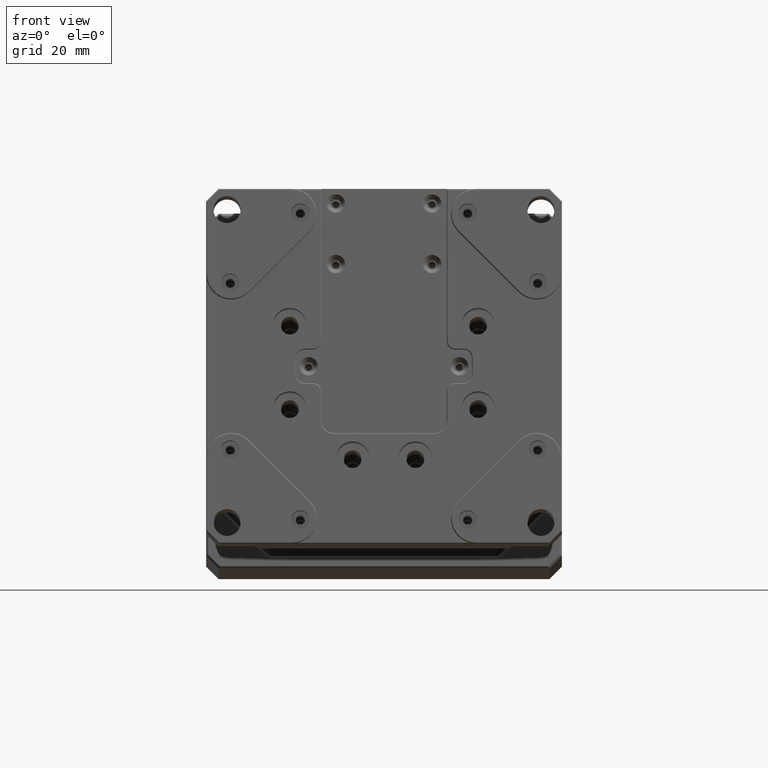
[diagram: clean part render]
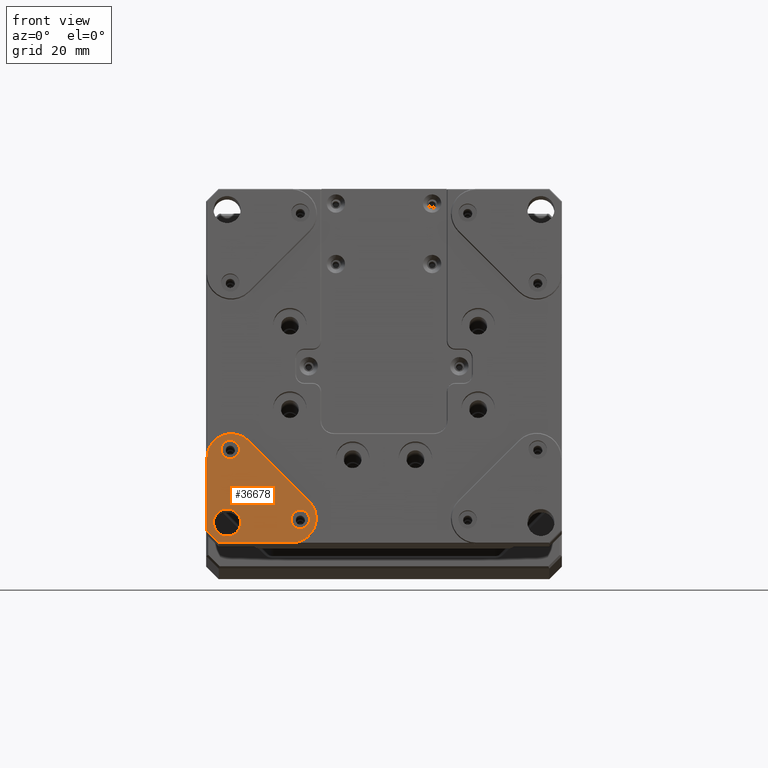
[diagram: same view with one face highlighted and labeled with its STEP entity id]
A machine part, front view. The second image highlights one B-rep face of the part: STEP entity #36678.
In plain terms, the highlighted planar face has unit normal (0, -0.9972, 0.0746).
Its self-contained STEP definition (entity closure, byte-faithful):
#595 = ORIENTED_EDGE ( 'NONE', *, *, #14929, .T. ) ;
#2346 = EDGE_LOOP ( 'NONE', ( #70621, #595, #26889, #13285, #59125, #8609 ) ) ;
#2611 = CARTESIAN_POINT ( 'NONE',  ( 61.25606156534639979, -43.26054637340540410, -56.07670192621849736 ) ) ;
#2772 = CARTESIAN_POINT ( 'NONE',  ( 65.36464020910901240, -41.70466977353864735, -35.27623195450810556 ) ) ;
#2848 = CIRCLE ( 'NONE', #41803, 3.250000000000002665 ) ;
#4487 = CARTESIAN_POINT ( 'NONE',  ( 59.81464020910899393, -43.15920769846449900, -54.72190806579190081 ) ) ;
#4854 = CIRCLE ( 'NONE', #55304, 2.199999999999993516 ) ;
#5282 = CARTESIAN_POINT ( 'NONE',  ( 82.11464020910901240, -42.95408055520569945, -51.97956912702110088 ) ) ;
#5554 = LINE ( 'NONE', #4487, #17437 ) ;
#7916 = CARTESIAN_POINT ( 'NONE',  ( 63.16464020910900246, -41.70466977353864735, -35.27623195450810556 ) ) ;
#7939 = CIRCLE ( 'NONE', #62962, 2.199999999999993516 ) ;
#8609 = ORIENTED_EDGE ( 'NONE', *, *, #46206, .T. ) ;
#8725 = CIRCLE ( 'NONE', #63765, 2.199999999999993516 ) ;
#9234 = EDGE_CURVE ( 'NONE', #61385, #19101, #4854, .T. ) ;
#10197 = ORIENTED_EDGE ( 'NONE', *, *, #63661, .F. ) ;
#10582 = DIRECTION ( 'NONE',  ( 3.473033245333054866E-16, -0.07459168845773747614, -0.9972141595530138458 ) ) ;
#10632 = VERTEX_POINT ( 'NONE', #33092 ) ;
#11722 = DIRECTION ( 'NONE',  ( 1.000000000000000000, 9.454242944073600637E-16, 2.775557561562890365E-16 ) ) ;
#12087 = LINE ( 'NONE', #60874, #14403 ) ;
#13285 = ORIENTED_EDGE ( 'NONE', *, *, #40613, .T. ) ;
#14079 = DIRECTION ( 'NONE',  ( 1.000000000000000000, 0.000000000000000000, 0.000000000000000000 ) ) ;
#14102 = CARTESIAN_POINT ( 'NONE',  ( 82.11464020910901240, -42.95408055520569945, -51.97956912702110088 ) ) ;
#14403 = VECTOR ( 'NONE', #11722, 1000.000000000000000 ) ;
#14761 = EDGE_CURVE ( 'NONE', #62729, #10632, #41583, .T. ) ;
#14892 = EDGE_LOOP ( 'NONE', ( #10197, #51778 ) ) ;
#14929 = EDGE_CURVE ( 'NONE', #28533, #55450, #61737, .T. ) ;
#15128 = DIRECTION ( 'NONE',  ( 0.000000000000000000, 0.9972141595530139568, -0.07459168845773739287 ) ) ;
#15208 = VERTEX_POINT ( 'NONE', #58830 ) ;
#15481 = FACE_OUTER_BOUND ( 'NONE', #2346, .T. ) ;
#15833 = CARTESIAN_POINT ( 'NONE',  ( 102.1146402091089982, -40.21283600438385264, -15.33194876344784952 ) ) ;
#17301 = AXIS2_PLACEMENT_3D ( 'NONE', #27347, #60374, #61449 ) ;
#17372 = DIRECTION ( 'NONE',  ( 1.000000000000000000, 0.000000000000000000, 0.000000000000000000 ) ) ;
#17437 = VECTOR ( 'NONE', #10582, 1000.000000000000114 ) ;
#19101 = VERTEX_POINT ( 'NONE', #47033 ) ;
#19268 = DIRECTION ( 'NONE',  ( 1.000000000000000000, 0.000000000000000000, 0.000000000000000000 ) ) ;
#19768 = VERTEX_POINT ( 'NONE', #40053 ) ;
#22066 = CARTESIAN_POINT ( 'NONE',  ( 65.36464020910901240, -41.70466977353864735, -35.27623195450810556 ) ) ;
#22966 = DIRECTION ( 'NONE',  ( 1.193028147002146057E-15, -0.9972141595530139568, 0.07459168845773739287 ) ) ;
#23735 = CARTESIAN_POINT ( 'NONE',  ( 59.81464020910899393, -41.85275526330679696, -37.25598265159570133 ) ) ;
#26889 = ORIENTED_EDGE ( 'NONE', *, *, #60811, .T. ) ;
#27347 = CARTESIAN_POINT ( 'NONE',  ( 65.61464020910901240, -41.85275526330679696, -37.25598265159570133 ) ) ;
#27489 = DIRECTION ( 'NONE',  ( 0.000000000000000000, -0.9972141595530139568, 0.07459168845773739287 ) ) ;
#27854 = DIRECTION ( 'NONE',  ( 1.000000000000000000, 0.000000000000000000, 0.000000000000000000 ) ) ;
#28533 = VERTEX_POINT ( 'NONE', #55348 ) ;
#29061 = VERTEX_POINT ( 'NONE', #67813 ) ;
#30249 = EDGE_CURVE ( 'NONE', #29061, #28533, #43832, .T. ) ;
#31996 = DIRECTION ( 'NONE',  ( 1.000000000000000000, 0.000000000000000000, 0.000000000000000000 ) ) ;
#32430 = AXIS2_PLACEMENT_3D ( 'NONE', #63253, #58201, #14079 ) ;
#33092 = CARTESIAN_POINT ( 'NONE',  ( 61.36464020910899819, -43.01002432154904653, -52.72747974668590132 ) ) ;
#34249 = DIRECTION ( 'NONE',  ( 0.000000000000000000, -0.9972141595530139568, 0.07459168845773739287 ) ) ;
#34444 = DIRECTION ( 'NONE',  ( 1.000000000000000000, 1.196361017915039437E-15, 0.000000000000000000 ) ) ;
#35285 = DIRECTION ( 'NONE',  ( 0.000000000000000000, -0.9972141595530139568, 0.07459168845773739287 ) ) ;
#36541 = EDGE_CURVE ( 'NONE', #60348, #15208, #67575, .T. ) ;
#36653 = FACE_BOUND ( 'NONE', #48268, .T. ) ;
#36678 = ADVANCED_FACE ( 'NONE', ( #36653, #37713, #41691, #15481 ), #37013, .T. ) ;
#36994 = AXIS2_PLACEMENT_3D ( 'NONE', #62447, #22966, #34444 ) ;
#37013 = PLANE ( 'NONE',  #56740 ) ;
#37713 = FACE_BOUND ( 'NONE', #69679, .T. ) ;
#38433 = CARTESIAN_POINT ( 'NONE',  ( 69.71585953999090179, -41.54683838868079704, -33.16618866340770211 ) ) ;
#40053 = CARTESIAN_POINT ( 'NONE',  ( 67.56464020910900103, -41.70466977353864735, -35.27623195450810556 ) ) ;
#40613 = EDGE_CURVE ( 'NONE', #56710, #60348, #5554, .T. ) ;
#40630 = DIRECTION ( 'NONE',  ( 0.7071067811865492381, -0.05274428872861970652, -0.7051368945151782475 ) ) ;
#41583 = CIRCLE ( 'NONE', #32430, 3.250000000000002665 ) ;
#41691 = FACE_BOUND ( 'NONE', #14892, .T. ) ;
#41803 = AXIS2_PLACEMENT_3D ( 'NONE', #64694, #15128, #31996 ) ;
#43832 = CIRCLE ( 'NONE', #36994, 5.799999999999999822 ) ;
#45440 = VERTEX_POINT ( 'NONE', #7916 ) ;
#46206 = EDGE_CURVE ( 'NONE', #15208, #29061, #12087, .T. ) ;
#46324 = VECTOR ( 'NONE', #40630, 1000.000000000000227 ) ;
#46524 = EDGE_CURVE ( 'NONE', #45440, #19768, #8725, .T. ) ;
#47033 = CARTESIAN_POINT ( 'NONE',  ( 79.91464020910900956, -42.95408055520569945, -51.97956912702110088 ) ) ;
#48268 = EDGE_LOOP ( 'NONE', ( #69512, #50675 ) ) ;
#50675 = ORIENTED_EDGE ( 'NONE', *, *, #14761, .T. ) ;
#51778 = ORIENTED_EDGE ( 'NONE', *, *, #46524, .F. ) ;
#52055 = ORIENTED_EDGE ( 'NONE', *, *, #52965, .F. ) ;
#52154 = CIRCLE ( 'NONE', #63660, 2.199999999999993516 ) ;
#52592 = EDGE_CURVE ( 'NONE', #10632, #62729, #2848, .T. ) ;
#52790 = DIRECTION ( 'NONE',  ( 9.220871406755754336E-16, -0.9972141595530139568, 0.07459168845773739287 ) ) ;
#52965 = EDGE_CURVE ( 'NONE', #19101, #61385, #52154, .T. ) ;
#54362 = CARTESIAN_POINT ( 'NONE',  ( 67.86464020910901240, -43.01002432154904653, -52.72747974668590132 ) ) ;
#55304 = AXIS2_PLACEMENT_3D ( 'NONE', #14102, #35285, #68325 ) ;
#55348 = CARTESIAN_POINT ( 'NONE',  ( 84.23057816575230561, -42.62951575846530261, -47.64047159894490591 ) ) ;
#55450 = VERTEX_POINT ( 'NONE', #62742 ) ;
#55653 = DIRECTION ( 'NONE',  ( -0.7071067811865476838, 0.05274428872861978285, 0.7051368945151798018 ) ) ;
#56688 = CARTESIAN_POINT ( 'NONE',  ( 84.31464020910900103, -42.95408055520569945, -51.97956912702110088 ) ) ;
#56710 = VERTEX_POINT ( 'NONE', #23735 ) ;
#56740 = AXIS2_PLACEMENT_3D ( 'NONE', #15833, #52790, #58910 ) ;
#58201 = DIRECTION ( 'NONE',  ( 0.000000000000000000, 0.9972141595530139568, -0.07459168845773739287 ) ) ;
#58830 = CARTESIAN_POINT ( 'NONE',  ( 62.69748292158359959, -43.36806442614614809, -57.51410771254030152 ) ) ;
#58910 = DIRECTION ( 'NONE',  ( -1.000000000000000000, -9.246631045520721112E-16, 0.000000000000000000 ) ) ;
#59125 = ORIENTED_EDGE ( 'NONE', *, *, #36541, .T. ) ;
#59939 = VECTOR ( 'NONE', #55653, 1000.000000000000227 ) ;
#60348 = VERTEX_POINT ( 'NONE', #65529 ) ;
#60374 = DIRECTION ( 'NONE',  ( 1.193028147002146057E-15, -0.9972141595530139568, 0.07459168845773739287 ) ) ;
#60811 = EDGE_CURVE ( 'NONE', #55450, #56710, #68902, .T. ) ;
#60874 = CARTESIAN_POINT ( 'NONE',  ( 80.12935883487038780, -43.36806442614614809, -57.51410771254030152 ) ) ;
#61385 = VERTEX_POINT ( 'NONE', #56688 ) ;
#61449 = DIRECTION ( 'NONE',  ( 1.000000000000000000, 1.196361017915039437E-15, 0.000000000000000000 ) ) ;
#61737 = LINE ( 'NONE', #38433, #59939 ) ;
#62447 = CARTESIAN_POINT ( 'NONE',  ( 80.12935883487038780, -42.93543263309129543, -51.73026558713289802 ) ) ;
#62729 = VERTEX_POINT ( 'NONE', #54362 ) ;
#62742 = CARTESIAN_POINT ( 'NONE',  ( 69.71585953999090179, -41.54683838868079704, -33.16618866340770211 ) ) ;
#62962 = AXIS2_PLACEMENT_3D ( 'NONE', #2772, #68446, #19268 ) ;
#63253 = CARTESIAN_POINT ( 'NONE',  ( 64.61464020910901240, -43.01002432154904653, -52.72747974668590132 ) ) ;
#63660 = AXIS2_PLACEMENT_3D ( 'NONE', #5282, #27489, #27854 ) ;
#63661 = EDGE_CURVE ( 'NONE', #19768, #45440, #7939, .T. ) ;
#63765 = AXIS2_PLACEMENT_3D ( 'NONE', #22066, #34249, #17372 ) ;
#64694 = CARTESIAN_POINT ( 'NONE',  ( 64.61464020910901240, -43.01002432154904653, -52.72747974668590132 ) ) ;
#65529 = CARTESIAN_POINT ( 'NONE',  ( 59.81464020910899393, -43.15302832066460326, -54.63929613989639478 ) ) ;
#66897 = ORIENTED_EDGE ( 'NONE', *, *, #9234, .F. ) ;
#67575 = LINE ( 'NONE', #2611, #46324 ) ;
#67813 = CARTESIAN_POINT ( 'NONE',  ( 80.12935883487038780, -43.36806442614614809, -57.51410771254030152 ) ) ;
#68325 = DIRECTION ( 'NONE',  ( 1.000000000000000000, 0.000000000000000000, 0.000000000000000000 ) ) ;
#68446 = DIRECTION ( 'NONE',  ( 0.000000000000000000, -0.9972141595530139568, 0.07459168845773739287 ) ) ;
#68902 = CIRCLE ( 'NONE', #17301, 5.799999999999999822 ) ;
#69512 = ORIENTED_EDGE ( 'NONE', *, *, #52592, .T. ) ;
#69679 = EDGE_LOOP ( 'NONE', ( #66897, #52055 ) ) ;
#70621 = ORIENTED_EDGE ( 'NONE', *, *, #30249, .T. ) ;